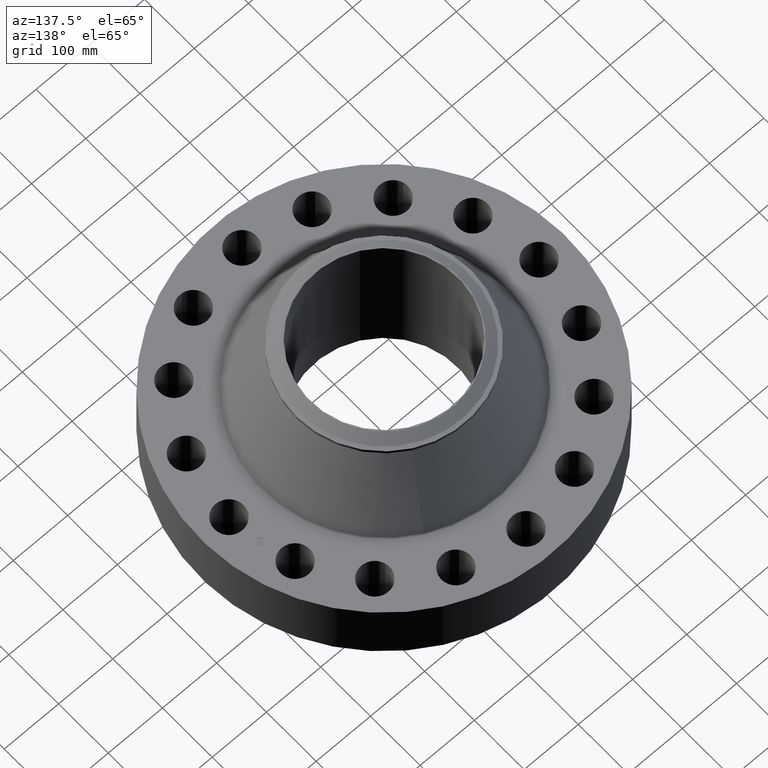
[diagram: clean part render]
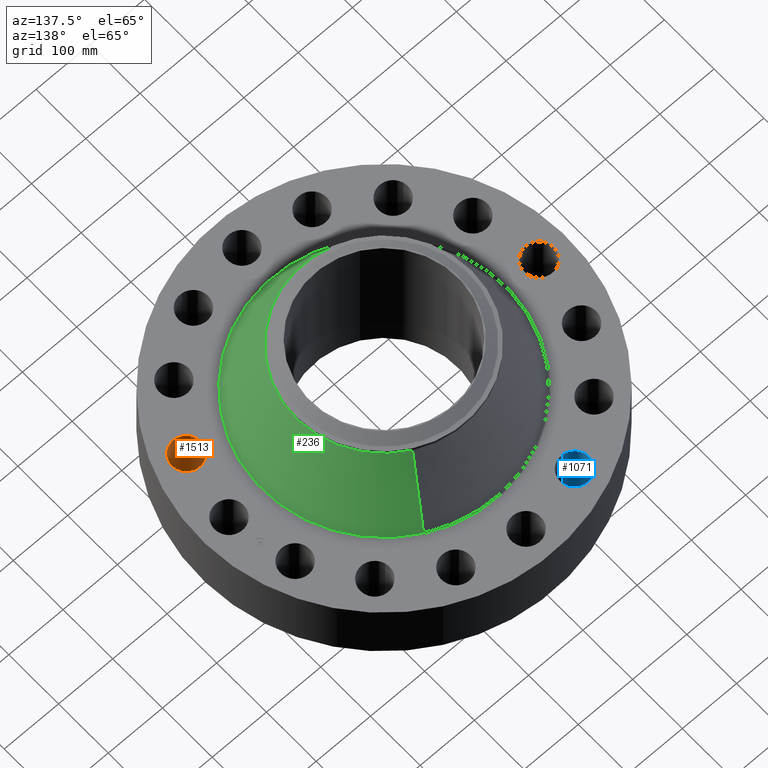
[diagram: same view with three faces highlighted in distinct colors, each labeled with its STEP entity id]
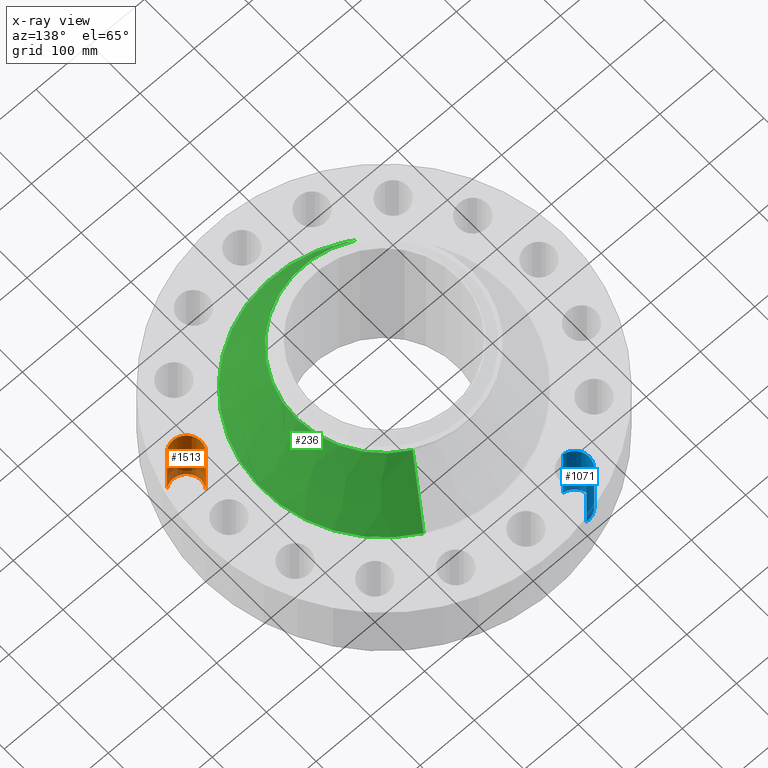
[diagram: x-ray of the same camera — body ghosted, the three highlighted faces saturated]
A machine part, auxiliary view with three faces highlighted in distinct colors.
The next image is the same camera in x-ray (body ghosted, the three faces saturated) — at least one of them is partly hidden behind the body in this view.
Their STEP definitions:

[orange] entity #1513 — the highlighted cylindrical surface (edge-blend (fillet) strip) has radius 26.924 mm, axis along (0, -0, -1).
#609=AXIS2_PLACEMENT_3D('Circle Axis2P3D',#607,#608,$) ;
#1474=AXIS2_PLACEMENT_3D('Cylinder Axis2P3D',#1471,#1472,#1473) ;
#1504=AXIS2_PLACEMENT_3D('Circle Axis2P3D',#1502,#1503,$) ;
#602=CARTESIAN_POINT('Vertex',(9.72869364307,-3.47969479971,0.)) ;
#604=CARTESIAN_POINT('Vertex',(11.0585958385,-5.13068242854,0.)) ;
#607=CARTESIAN_POINT('Axis2P3D Location',(10.3936447408,-4.30518861412,0.)) ;
#1471=CARTESIAN_POINT('Axis2P3D Location',(10.3936447408,-4.30518861412,4.87606299215)) ;
#1476=CARTESIAN_POINT('Line Origine',(9.72869364307,-3.47969479971,2.44000000001)) ;
#1480=CARTESIAN_POINT('Vertex',(9.72869364307,-3.47969479971,4.88000000002)) ;
#1483=CARTESIAN_POINT('Line Origine',(11.0585958385,-5.13068242854,2.44000000001)) ;
#1487=CARTESIAN_POINT('Vertex',(11.0585958385,-5.13068242854,4.88000000002)) ;
#1502=CARTESIAN_POINT('Axis2P3D Location',(10.3936447408,-4.30518861412,4.88000000002)) ;
#608=DIRECTION('Axis2P3D Direction',(0.,0.,-0.0393700787402)) ;
#1472=DIRECTION('Axis2P3D Direction',(0.,-0.,-0.0393700787402)) ;
#1473=DIRECTION('Axis2P3D XDirection',(0.0246973368639,-0.030660147616,0.)) ;
#1477=DIRECTION('Vector Direction',(0.,0.,-0.0393700787402)) ;
#1484=DIRECTION('Vector Direction',(0.,0.,-0.0393700787402)) ;
#1503=DIRECTION('Axis2P3D Direction',(0.,-0.,-0.0393700787402)) ;
#1478=VECTOR('Line Direction',#1477,0.0393700787402) ;
#1485=VECTOR('Line Direction',#1484,0.0393700787402) ;
#1508=ORIENTED_EDGE('',*,*,#1489,.F.) ;
#1509=ORIENTED_EDGE('',*,*,#611,.T.) ;
#1510=ORIENTED_EDGE('',*,*,#1482,.T.) ;
#1511=ORIENTED_EDGE('',*,*,#1506,.F.) ;
#1513=ADVANCED_FACE('PartBody',(#1512),#1475,.F.) ;
#610=CIRCLE('generated circle',#609,1.06) ;
#1505=CIRCLE('generated circle',#1504,1.06) ;
#1475=CYLINDRICAL_SURFACE('generated cylinder',#1474,1.06) ;
#611=EDGE_CURVE('',#605,#603,#610,.T.) ;
#1482=EDGE_CURVE('',#603,#1481,#1479,.F.) ;
#1489=EDGE_CURVE('',#605,#1488,#1486,.F.) ;
#1506=EDGE_CURVE('',#1488,#1481,#1505,.T.) ;
#1507=EDGE_LOOP('',(#1508,#1509,#1510,#1511)) ;
#1512=FACE_OUTER_BOUND('',#1507,.T.) ;
#1479=LINE('Line',#1476,#1478) ;
#1486=LINE('Line',#1483,#1485) ;
#603=VERTEX_POINT('',#602) ;
#605=VERTEX_POINT('',#604) ;
#1481=VERTEX_POINT('',#1480) ;
#1488=VERTEX_POINT('',#1487) ;

[blue] entity #1071 — the highlighted cylindrical surface (edge-blend (fillet) strip) has radius 26.924 mm, axis along (0, 0, -1).
#780=AXIS2_PLACEMENT_3D('Circle Axis2P3D',#778,#779,$) ;
#1044=AXIS2_PLACEMENT_3D('Cylinder Axis2P3D',#1041,#1042,#1043) ;
#1062=AXIS2_PLACEMENT_3D('Circle Axis2P3D',#1060,#1061,$) ;
#778=CARTESIAN_POINT('Axis2P3D Location',(-4.30518861412,10.3936447408,0.)) ;
#782=CARTESIAN_POINT('Vertex',(-4.41870945777,9.33974103643,0.)) ;
#784=CARTESIAN_POINT('Vertex',(-4.19166777048,11.4475484452,0.)) ;
#1041=CARTESIAN_POINT('Axis2P3D Location',(-4.30518861412,10.3936447408,4.87606299215)) ;
#1046=CARTESIAN_POINT('Line Origine',(-4.41870945777,9.33974103643,2.44000000001)) ;
#1050=CARTESIAN_POINT('Vertex',(-4.41870945777,9.33974103643,4.88000000002)) ;
#1053=CARTESIAN_POINT('Line Origine',(-4.19166777048,11.4475484452,2.44000000001)) ;
#1057=CARTESIAN_POINT('Vertex',(-4.19166777048,11.4475484452,4.88000000002)) ;
#1060=CARTESIAN_POINT('Axis2P3D Location',(-4.30518861412,10.3936447408,4.88000000002)) ;
#779=DIRECTION('Axis2P3D Direction',(0.,0.,-0.0393700787402)) ;
#1042=DIRECTION('Axis2P3D Direction',(0.,0.,-0.0393700787402)) ;
#1043=DIRECTION('Axis2P3D XDirection',(0.00421634391778,0.0391436526652,0.)) ;
#1047=DIRECTION('Vector Direction',(0.,0.,-0.0393700787402)) ;
#1054=DIRECTION('Vector Direction',(0.,0.,-0.0393700787402)) ;
#1061=DIRECTION('Axis2P3D Direction',(0.,0.,-0.0393700787402)) ;
#1048=VECTOR('Line Direction',#1047,0.0393700787402) ;
#1055=VECTOR('Line Direction',#1054,0.0393700787402) ;
#1066=ORIENTED_EDGE('',*,*,#1052,.F.) ;
#1067=ORIENTED_EDGE('',*,*,#786,.T.) ;
#1068=ORIENTED_EDGE('',*,*,#1059,.T.) ;
#1069=ORIENTED_EDGE('',*,*,#1064,.F.) ;
#1071=ADVANCED_FACE('PartBody',(#1070),#1045,.F.) ;
#781=CIRCLE('generated circle',#780,1.06) ;
#1063=CIRCLE('generated circle',#1062,1.06) ;
#1045=CYLINDRICAL_SURFACE('generated cylinder',#1044,1.06) ;
#786=EDGE_CURVE('',#783,#785,#781,.T.) ;
#1052=EDGE_CURVE('',#783,#1051,#1049,.F.) ;
#1059=EDGE_CURVE('',#785,#1058,#1056,.F.) ;
#1064=EDGE_CURVE('',#1051,#1058,#1063,.T.) ;
#1065=EDGE_LOOP('',(#1066,#1067,#1068,#1069)) ;
#1070=FACE_OUTER_BOUND('',#1065,.T.) ;
#1049=LINE('Line',#1046,#1048) ;
#1056=LINE('Line',#1053,#1055) ;
#783=VERTEX_POINT('',#782) ;
#785=VERTEX_POINT('',#784) ;
#1051=VERTEX_POINT('',#1050) ;
#1058=VERTEX_POINT('',#1057) ;

[green] entity #236 — the highlighted conical surface has half-angle 24.658 deg.
#172=AXIS2_PLACEMENT_3D('Circle Axis2P3D',#170,#171,$) ;
#209=AXIS2_PLACEMENT_3D('Cone Axis2P3D',#206,#207,#208) ;
#220=AXIS2_PLACEMENT_3D('Circle Axis2P3D',#218,#219,$) ;
#167=CARTESIAN_POINT('Vertex',(4.23950964946,7.76037035941,4.94993499733)) ;
#170=CARTESIAN_POINT('Axis2P3D Location',(0.,0.,4.94993499733)) ;
#174=CARTESIAN_POINT('Vertex',(-4.23950964946,-7.76037035941,4.94993499733)) ;
#206=CARTESIAN_POINT('Axis2P3D Location',(0.,0.,10.3257853752)) ;
#211=CARTESIAN_POINT('Line Origine',(3.64792372904,6.67747959574,7.63786018624)) ;
#215=CARTESIAN_POINT('Vertex',(3.05633780861,5.59458883207,10.3257853752)) ;
#218=CARTESIAN_POINT('Axis2P3D Location',(0.,0.,10.3257853752)) ;
#222=CARTESIAN_POINT('Vertex',(-3.05633780861,-5.59458883207,10.3257853752)) ;
#225=CARTESIAN_POINT('Line Origine',(-3.64792372904,-6.67747959574,7.63786018624)) ;
#171=DIRECTION('Axis2P3D Direction',(0.,0.,-0.0393700787402)) ;
#207=DIRECTION('Axis2P3D Direction',(0.,0.,-0.0393700787402)) ;
#208=DIRECTION('Axis2P3D XDirection',(-0.0188750212049,-0.0345504945626,0.)) ;
#212=DIRECTION('Vector Direction',(0.00787481656096,0.0144147550256,-0.0357799553059)) ;
#219=DIRECTION('Axis2P3D Direction',(0.,0.,-0.0393700787402)) ;
#226=DIRECTION('Vector Direction',(-0.00787481656096,-0.0144147550256,-0.0357799553059)) ;
#213=VECTOR('Line Direction',#212,0.0393700787402) ;
#227=VECTOR('Line Direction',#226,0.0393700787402) ;
#231=ORIENTED_EDGE('',*,*,#176,.F.) ;
#232=ORIENTED_EDGE('',*,*,#217,.T.) ;
#233=ORIENTED_EDGE('',*,*,#224,.T.) ;
#234=ORIENTED_EDGE('',*,*,#229,.F.) ;
#236=ADVANCED_FACE('PartBody',(#235),#210,.T.) ;
#173=CIRCLE('generated circle',#172,8.84289489834) ;
#221=CIRCLE('generated circle',#220,6.37500000003) ;
#210=CONICAL_SURFACE('Cone',#209,6.37500000003,0.430371391378) ;
#176=EDGE_CURVE('',#168,#175,#173,.T.) ;
#217=EDGE_CURVE('',#168,#216,#214,.F.) ;
#224=EDGE_CURVE('',#216,#223,#221,.T.) ;
#229=EDGE_CURVE('',#175,#223,#228,.F.) ;
#230=EDGE_LOOP('',(#231,#232,#233,#234)) ;
#235=FACE_OUTER_BOUND('',#230,.T.) ;
#214=LINE('Line',#211,#213) ;
#228=LINE('Line',#225,#227) ;
#168=VERTEX_POINT('',#167) ;
#175=VERTEX_POINT('',#174) ;
#216=VERTEX_POINT('',#215) ;
#223=VERTEX_POINT('',#222) ;